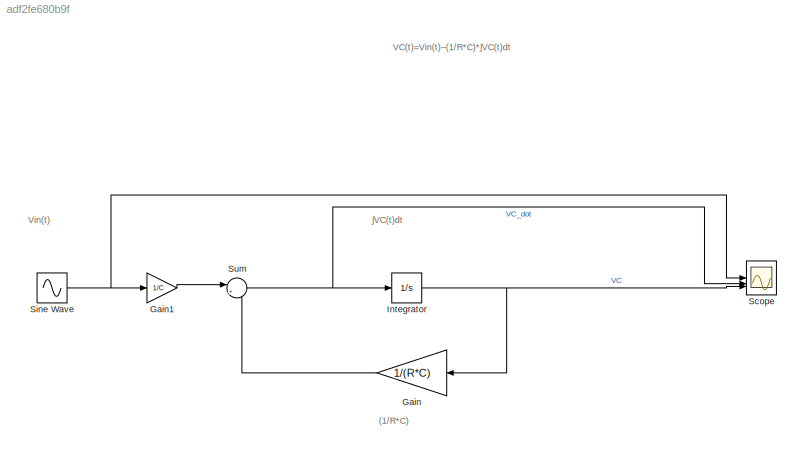
MODEL slx_adf2fe680b9f
KIND model
CONFIG AbsTol = auto
CONFIG EnableMultiTasking = off
CONFIG FixedStep = auto
CONFIG MaxStep = auto
CONFIG MinStep = auto
CONFIG RelTol = auto
CONFIG SampleTimeConstraint = Unconstrained
CONFIG SolverName = VariableStepAuto
CONFIG StartTime = 0.0
CONFIG StopTime = 10.0
BLOCK [Gain] Gain
  Gain = 1/(R*C)
  NameLocation = top
BLOCK [Gain] Gain1
  Gain = 1/C
BLOCK [Integrator] Integrator
  InitialCondition = 1
BLOCK [Scope] Scope
  Floating = off
  NumInputPorts = 3
  ScopeSpecificationString = Simulink.scopes.TimeScopeBlockCfg('CurrentConfiguration', extmgr.ConfigurationSet(extmgr.Configuration('Core','General UI',true),extmgr.Configuration('Core','Source UI',true),extmgr.Configuration('Sources','WiredSimulink',true),extmgr.Configuration('Visuals','Time Domain',true,'SerializedDisplays',{struct('MinYLimReal','-6.25','MaxYLimReal','6.25','YLabelReal','','MinYLimMag','0.00000','MaxYLimMag...<+2764ch>
BLOCK [Sin] Sine Wave
  Amplitude = 5
  Frequency = 2*pi
  SampleTime = 0
BLOCK [Sum] Sum
  Inputs = |+-
ANNOTATION (root): VC​(t)=Vin​(t)−(1/R*C)*​∫VC​(t)dt
ANNOTATION (root): (1/R*C)
ANNOTATION (root): Vin​(t)
ANNOTATION (root): ​∫VC​(t)dt
LINE Gain1:1 -> Sum:1
LINE Gain:1 -> Sum:2
NET Integrator:1 -> Gain:1, Scope:3
NET Sine Wave:1 -> Gain1:1, Scope:1
NET Sum:1 -> Integrator:1, Scope:2
note: NET lines group one-source signal fan-out (src -> all destinations, sorted); 1:1 wires keep LINE
